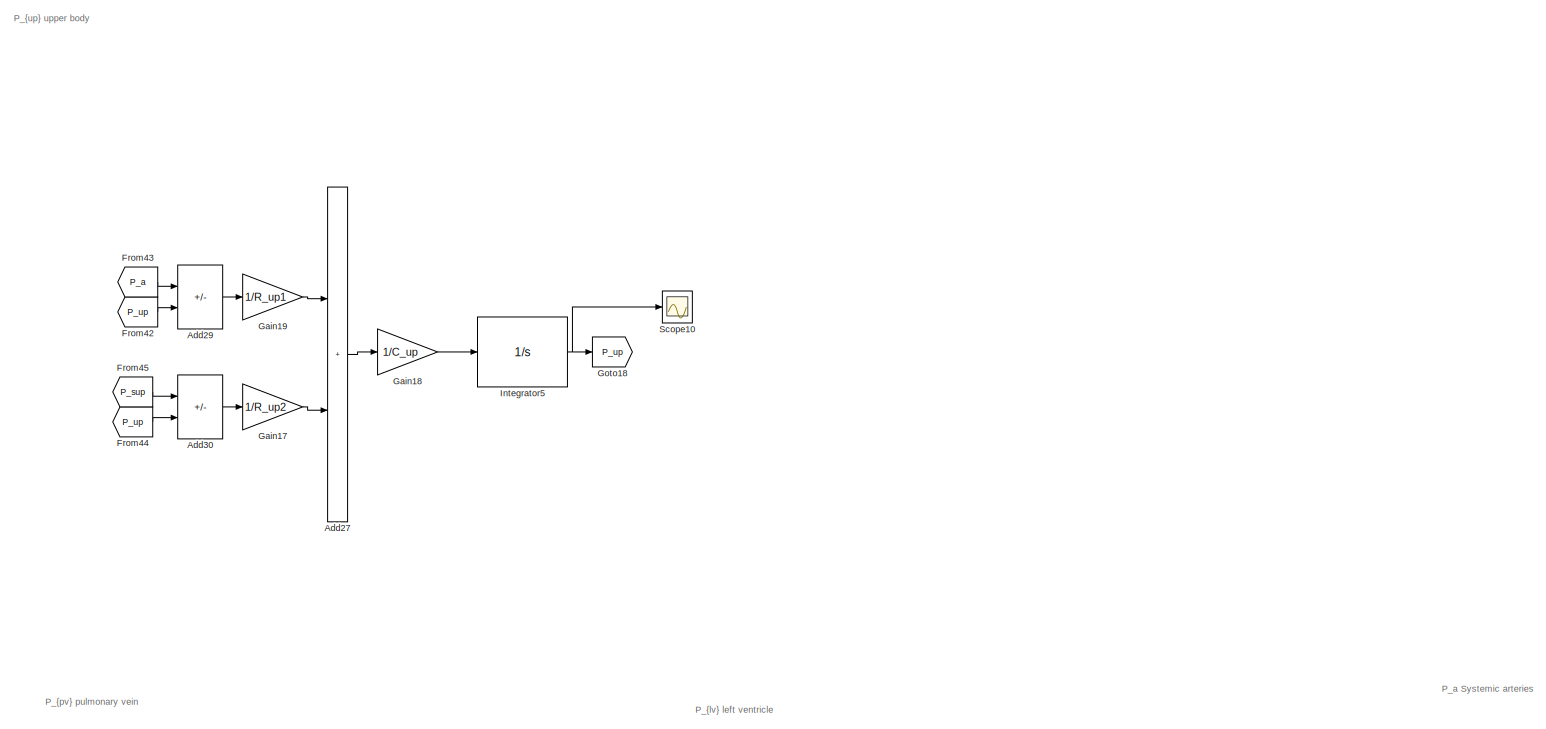
[diagram: root canvas - part 1/10, top right region]
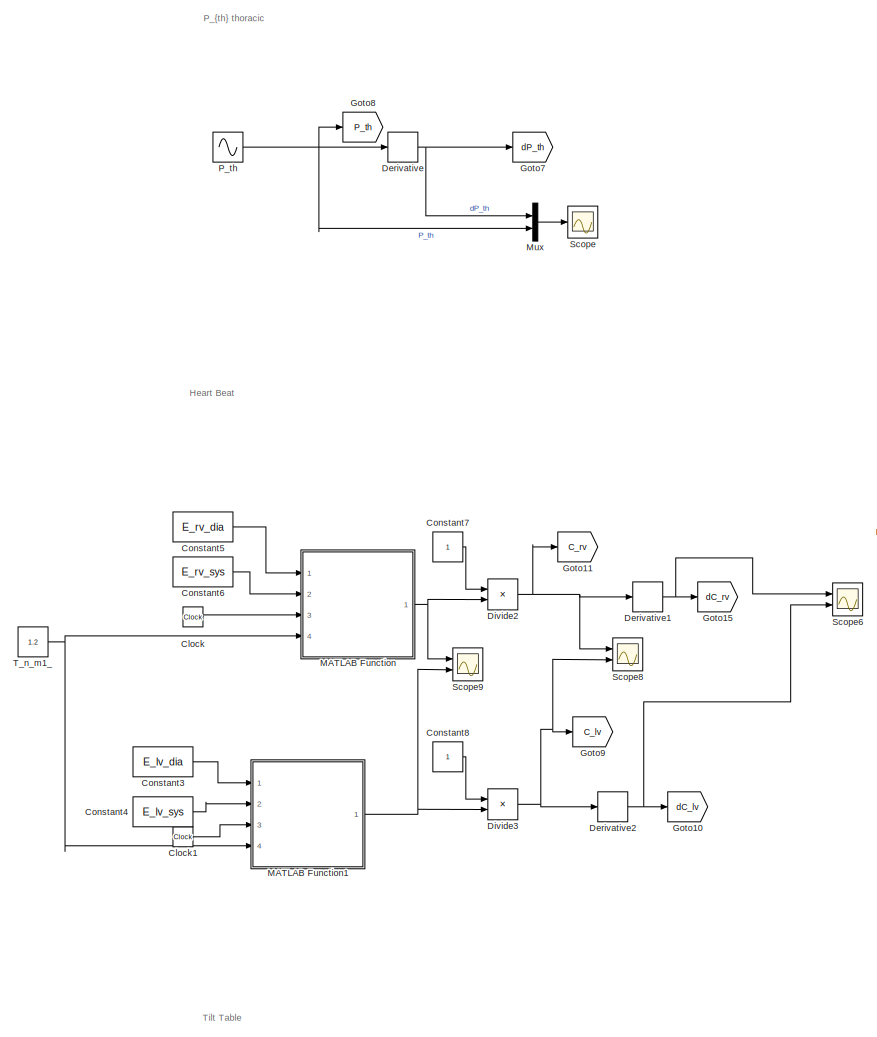
[diagram: root canvas - part 2/10, top left region]
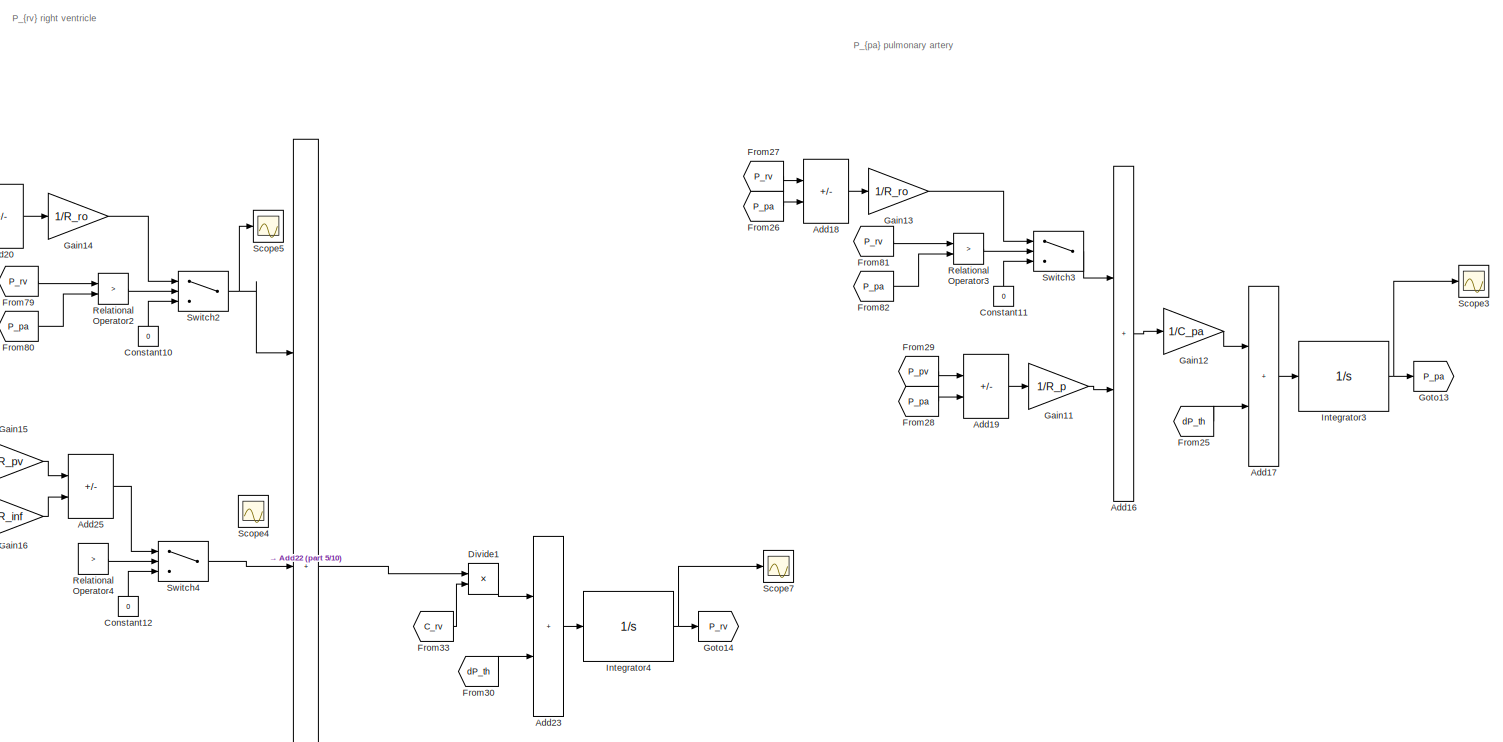
[diagram: root canvas - part 3/10, top center region]
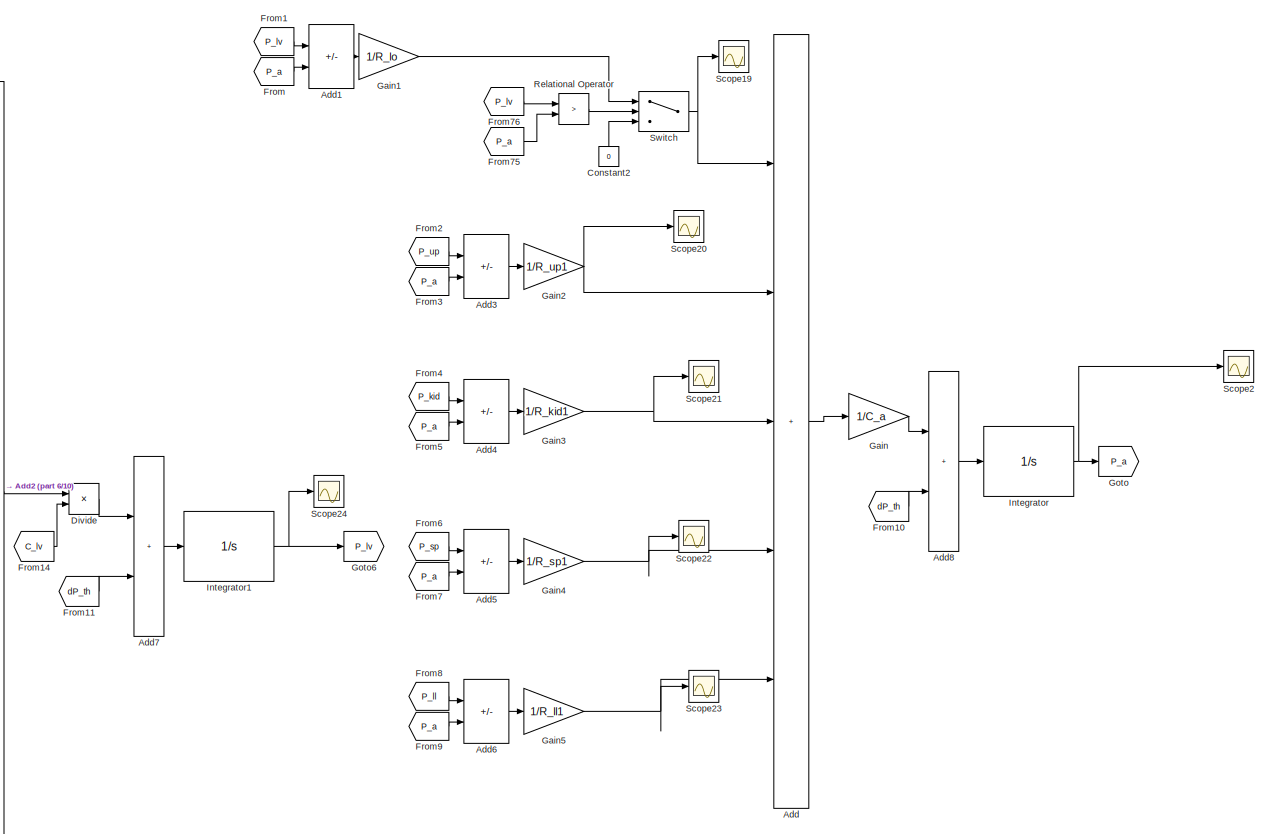
[diagram: root canvas - part 4/10, top right region]
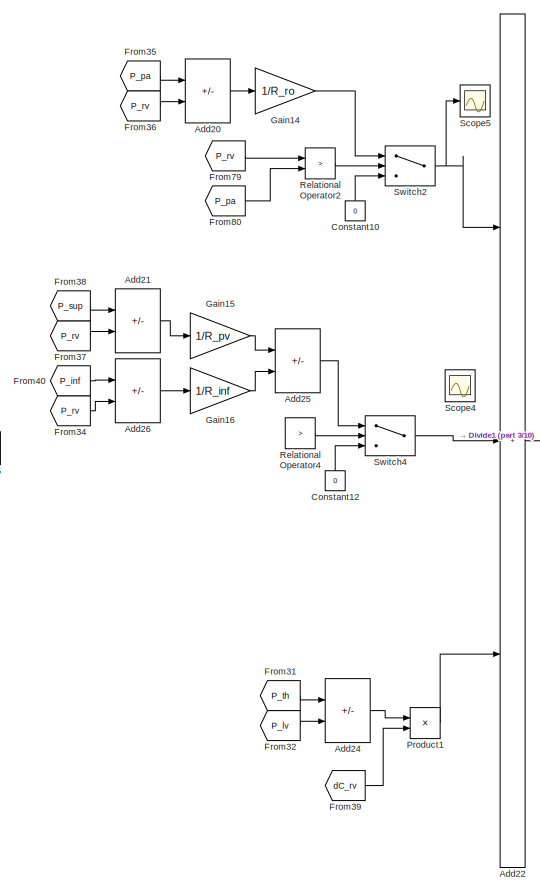
[diagram: root canvas - part 5/10, top left region]
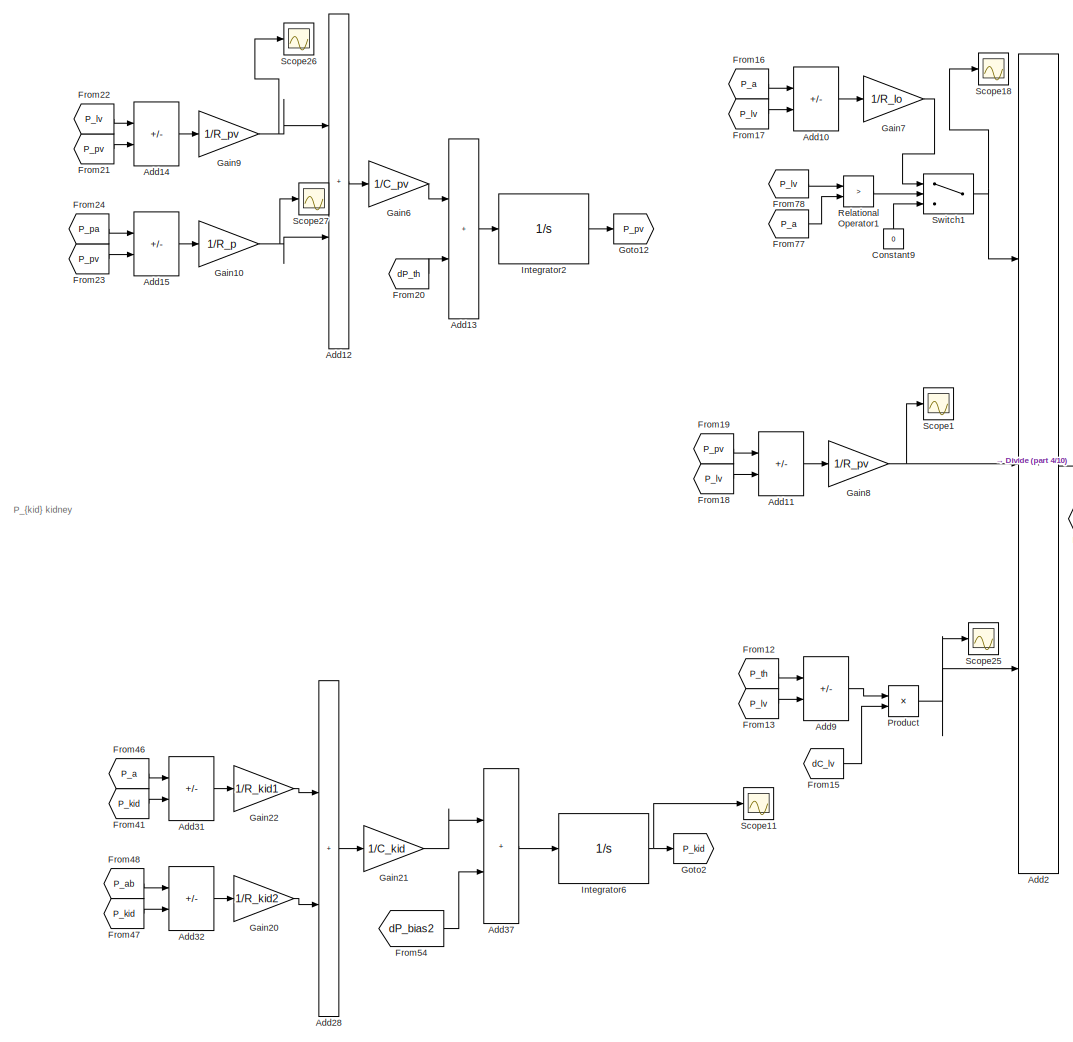
[diagram: root canvas - part 6/10, top center region]
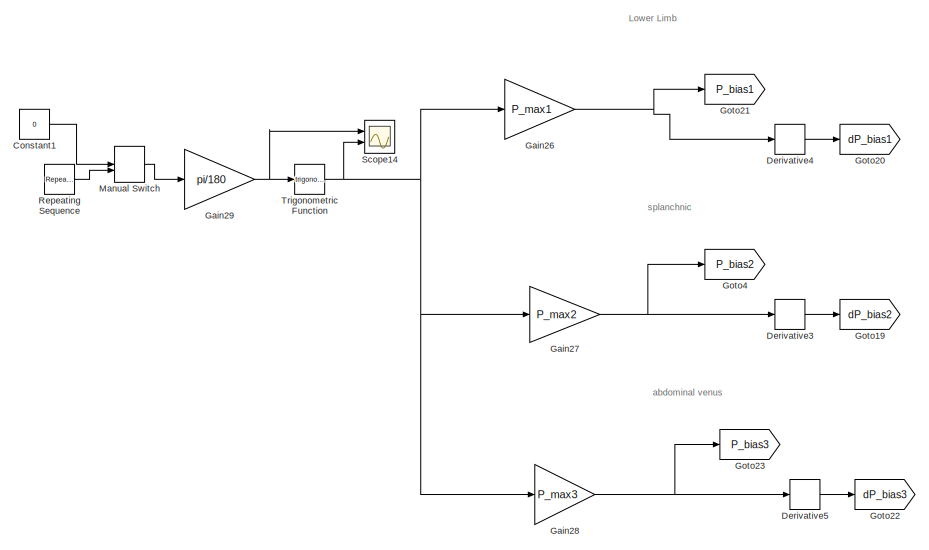
[diagram: root canvas - part 7/10, middle left region]
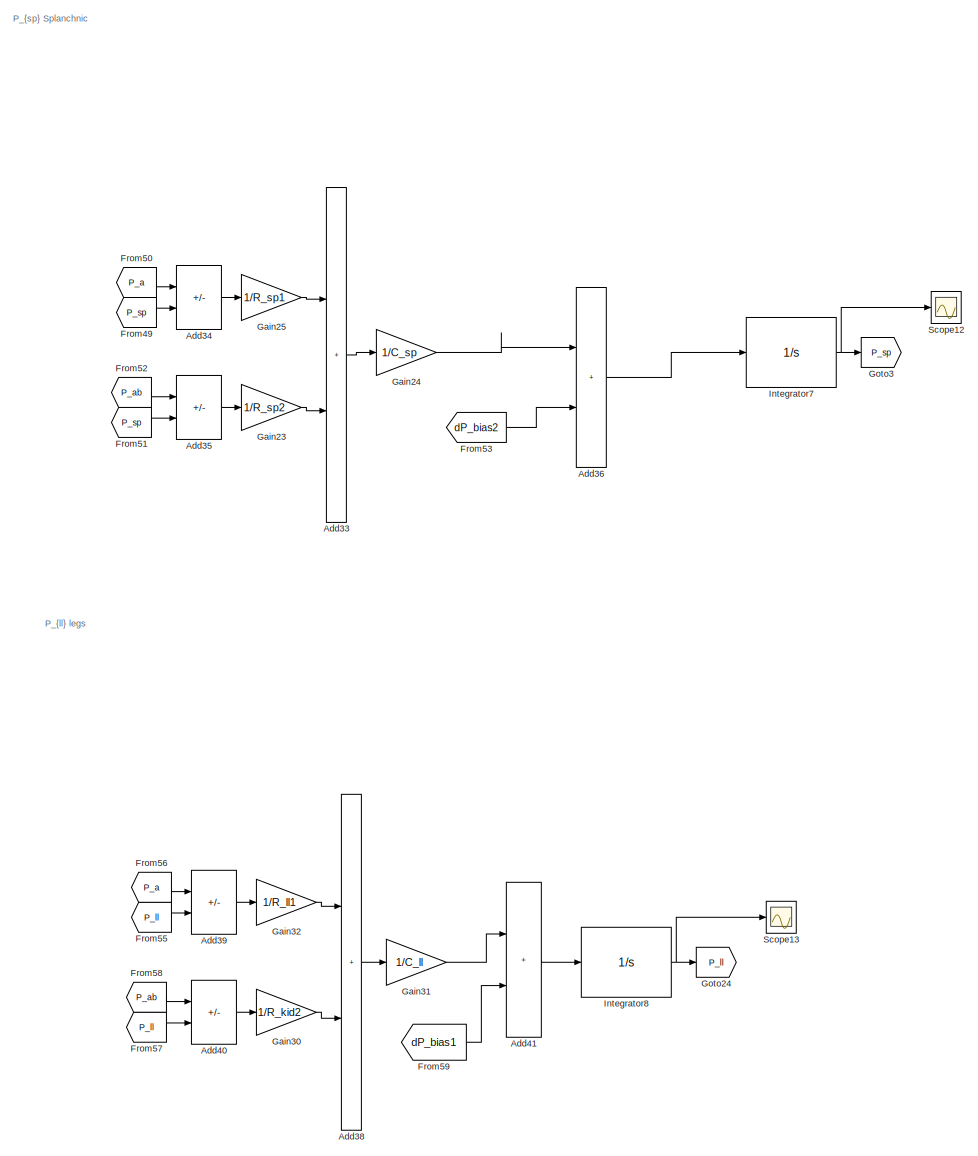
[diagram: root canvas - part 8/10, central region]
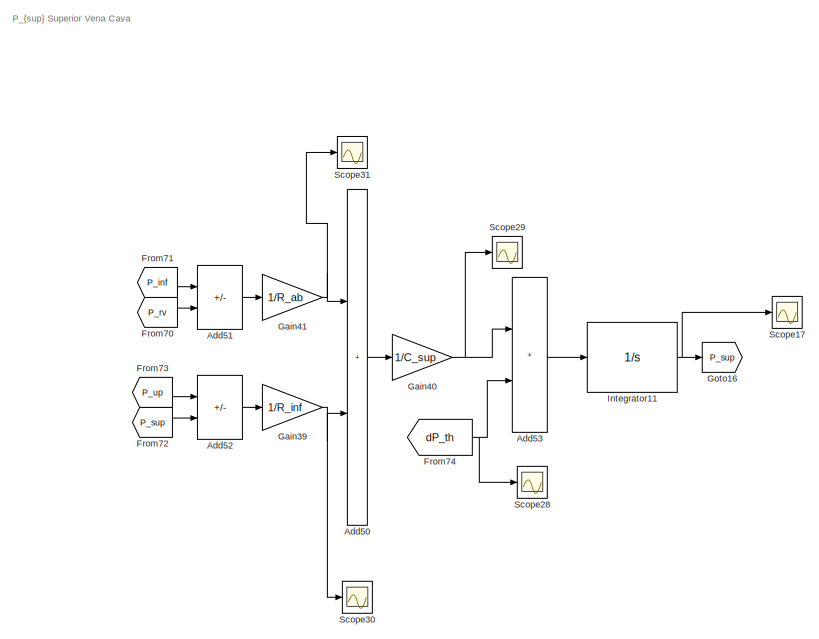
[diagram: root canvas - part 9/10, bottom center region]
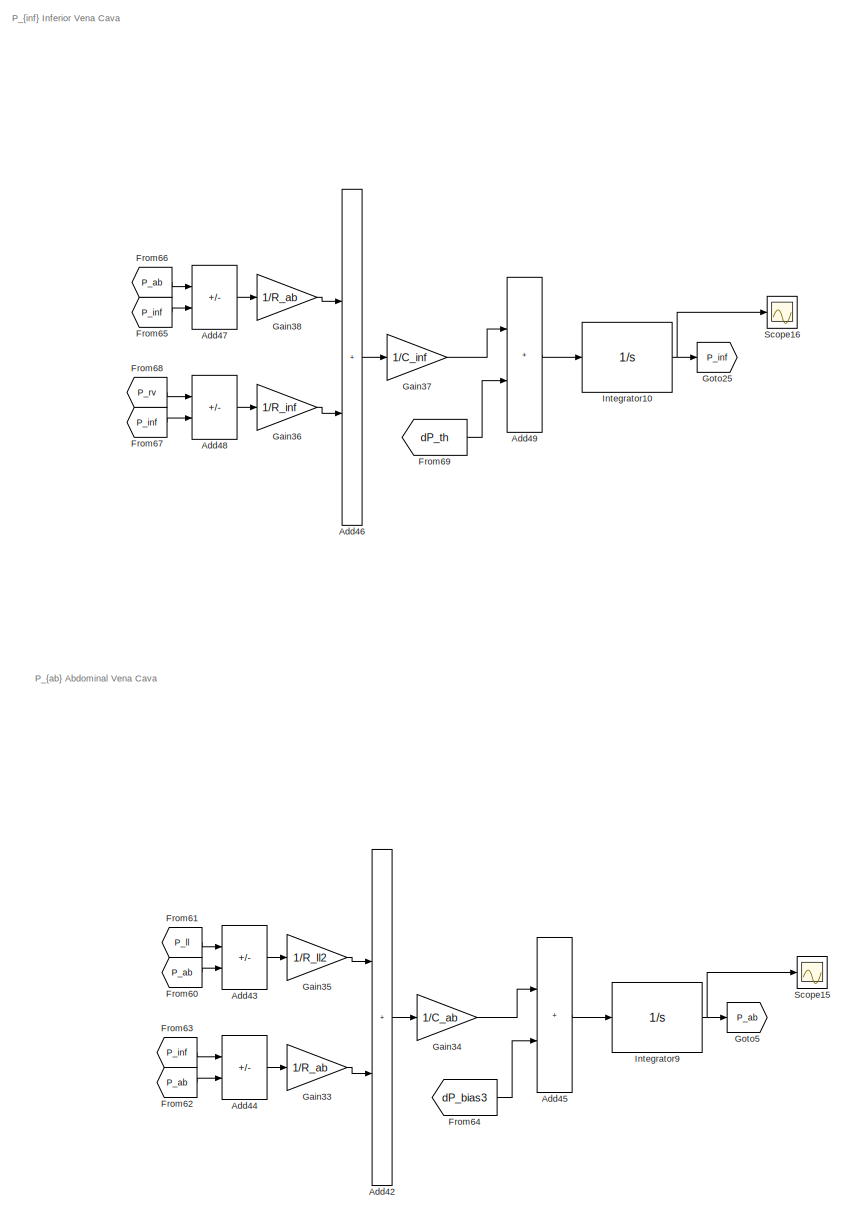
[diagram: root canvas - part 10/10, bottom center region]
MODEL slx_9fd78a174da4
KIND model
CONFIG AbsTol = auto
CONFIG EnableMultiTasking = off
CONFIG FixedStep = auto
CONFIG InitFcn = HeldtModel2002startup
CONFIG MaxStep = stepsize_max
CONFIG MinStep = stepsize_min 
CONFIG RelTol = 1e-3
CONFIG SampleTimeConstraint = Unconstrained
CONFIG SolverName = ode45
CONFIG StartTime = 0.0
CONFIG StopTime = 1000
BLOCK [Sum] Add
  IconShape = rectangular
  Inputs = +++++
  Ports = [5, 1]
BLOCK [Sum] Add1
  IconShape = rectangular
  Inputs = +-
  Ports = [2, 1]
BLOCK [Sum] Add10
  IconShape = rectangular
  Inputs = +-
  Ports = [2, 1]
BLOCK [Sum] Add11
  IconShape = rectangular
  Inputs = +-
  Ports = [2, 1]
BLOCK [Sum] Add12
  IconShape = rectangular
  Ports = [2, 1]
BLOCK [Sum] Add13
  IconShape = rectangular
  Ports = [2, 1]
BLOCK [Sum] Add14
  IconShape = rectangular
  Inputs = +-
  Ports = [2, 1]
BLOCK [Sum] Add15
  IconShape = rectangular
  Inputs = +-
  Ports = [2, 1]
BLOCK [Sum] Add16
  IconShape = rectangular
  Ports = [2, 1]
BLOCK [Sum] Add17
  IconShape = rectangular
  Ports = [2, 1]
BLOCK [Sum] Add18
  IconShape = rectangular
  Inputs = +-
  Ports = [2, 1]
BLOCK [Sum] Add19
  IconShape = rectangular
  Inputs = +-
  Ports = [2, 1]
BLOCK [Sum] Add2
  IconShape = rectangular
  Inputs = +++
  Ports = [3, 1]
BLOCK [Sum] Add20
  IconShape = rectangular
  Inputs = +-
  Ports = [2, 1]
BLOCK [Sum] Add21
  IconShape = rectangular
  Inputs = +-
  Ports = [2, 1]
BLOCK [Sum] Add22
  IconShape = rectangular
  Inputs = +++
  Ports = [3, 1]
BLOCK [Sum] Add23
  IconShape = rectangular
  Ports = [2, 1]
BLOCK [Sum] Add24
  IconShape = rectangular
  Inputs = +-
  Ports = [2, 1]
BLOCK [Sum] Add25
  IconShape = rectangular
  Inputs = +-
  Ports = [2, 1]
BLOCK [Sum] Add26
  IconShape = rectangular
  Inputs = +-
  Ports = [2, 1]
BLOCK [Sum] Add27
  IconShape = rectangular
  Ports = [2, 1]
BLOCK [Sum] Add28
  IconShape = rectangular
  Ports = [2, 1]
BLOCK [Sum] Add29
  IconShape = rectangular
  Inputs = +-
  Ports = [2, 1]
BLOCK [Sum] Add3
  IconShape = rectangular
  Inputs = +-
  Ports = [2, 1]
BLOCK [Sum] Add30
  IconShape = rectangular
  Inputs = +-
  Ports = [2, 1]
BLOCK [Sum] Add31
  IconShape = rectangular
  Inputs = +-
  Ports = [2, 1]
BLOCK [Sum] Add32
  IconShape = rectangular
  Inputs = +-
  Ports = [2, 1]
BLOCK [Sum] Add33
  IconShape = rectangular
  Ports = [2, 1]
BLOCK [Sum] Add34
  IconShape = rectangular
  Inputs = +-
  Ports = [2, 1]
BLOCK [Sum] Add35
  IconShape = rectangular
  Inputs = +-
  Ports = [2, 1]
BLOCK [Sum] Add36
  IconShape = rectangular
  Ports = [2, 1]
BLOCK [Sum] Add37
  IconShape = rectangular
  Ports = [2, 1]
BLOCK [Sum] Add38
  IconShape = rectangular
  Ports = [2, 1]
BLOCK [Sum] Add39
  IconShape = rectangular
  Inputs = +-
  Ports = [2, 1]
BLOCK [Sum] Add4
  IconShape = rectangular
  Inputs = +-
  Ports = [2, 1]
BLOCK [Sum] Add40
  IconShape = rectangular
  Inputs = +-
  Ports = [2, 1]
BLOCK [Sum] Add41
  IconShape = rectangular
  Ports = [2, 1]
BLOCK [Sum] Add42
  IconShape = rectangular
  Ports = [2, 1]
BLOCK [Sum] Add43
  IconShape = rectangular
  Inputs = +-
  Ports = [2, 1]
BLOCK [Sum] Add44
  IconShape = rectangular
  Inputs = +-
  Ports = [2, 1]
BLOCK [Sum] Add45
  IconShape = rectangular
  Ports = [2, 1]
BLOCK [Sum] Add46
  IconShape = rectangular
  Ports = [2, 1]
BLOCK [Sum] Add47
  IconShape = rectangular
  Inputs = +-
  Ports = [2, 1]
BLOCK [Sum] Add48
  IconShape = rectangular
  Inputs = +-
  Ports = [2, 1]
BLOCK [Sum] Add49
  IconShape = rectangular
  Ports = [2, 1]
BLOCK [Sum] Add5
  IconShape = rectangular
  Inputs = +-
  Ports = [2, 1]
BLOCK [Sum] Add50
  IconShape = rectangular
  Ports = [2, 1]
BLOCK [Sum] Add51
  IconShape = rectangular
  Inputs = +-
  Ports = [2, 1]
BLOCK [Sum] Add52
  IconShape = rectangular
  Inputs = +-
  Ports = [2, 1]
BLOCK [Sum] Add53
  IconShape = rectangular
  Ports = [2, 1]
BLOCK [Sum] Add6
  IconShape = rectangular
  Inputs = +-
  Ports = [2, 1]
BLOCK [Sum] Add7
  IconShape = rectangular
  Ports = [2, 1]
BLOCK [Sum] Add8
  IconShape = rectangular
  Ports = [2, 1]
BLOCK [Sum] Add9
  IconShape = rectangular
  Inputs = +-
  Ports = [2, 1]
BLOCK [Clock] Clock
BLOCK [Clock] Clock1
BLOCK [Constant] Constant1
  Value = 0
BLOCK [Constant] Constant10
  NameLocation = left
  Value = 0
BLOCK [Constant] Constant11
  NameLocation = left
  Value = 0
BLOCK [Constant] Constant12
  NameLocation = left
  Value = 0
BLOCK [Constant] Constant2
  NameLocation = left
  Value = 0
BLOCK [Constant] Constant3
  Value = E_lv_dia
BLOCK [Constant] Constant4
  Value = E_lv_sys
BLOCK [Constant] Constant5
  Value = E_rv_dia
BLOCK [Constant] Constant6
  Value = E_rv_sys
BLOCK [Constant] Constant7
BLOCK [Constant] Constant8
BLOCK [Constant] Constant9
  NameLocation = left
  Value = 0
BLOCK [Derivative] Derivative
BLOCK [Derivative] Derivative1
BLOCK [Derivative] Derivative2
BLOCK [Derivative] Derivative3
BLOCK [Derivative] Derivative4
BLOCK [Derivative] Derivative5
BLOCK [Product] Divide
  Inputs = */
  Ports = [2, 1]
BLOCK [Product] Divide1
  Inputs = */
  Ports = [2, 1]
BLOCK [Product] Divide2
  Inputs = */
  Ports = [2, 1]
BLOCK [Product] Divide3
  Inputs = */
  Ports = [2, 1]
BLOCK [From] From
  GotoTag = P_a
BLOCK [From] From1
  GotoTag = P_lv
BLOCK [From] From10
  GotoTag = dP_th
BLOCK [From] From11
  GotoTag = dP_th
BLOCK [From] From12
  GotoTag = P_th
BLOCK [From] From13
  GotoTag = P_lv
BLOCK [From] From14
  GotoTag = C_lv
BLOCK [From] From15
  GotoTag = dC_lv
BLOCK [From] From16
  GotoTag = P_a
BLOCK [From] From17
  GotoTag = P_lv
BLOCK [From] From18
  GotoTag = P_lv
BLOCK [From] From19
  GotoTag = P_pv
BLOCK [From] From2
  GotoTag = P_up
BLOCK [From] From20
  GotoTag = dP_th
BLOCK [From] From21
  GotoTag = P_pv
BLOCK [From] From22
  GotoTag = P_lv
BLOCK [From] From23
  GotoTag = P_pv
BLOCK [From] From24
  GotoTag = P_pa
BLOCK [From] From25
  GotoTag = dP_th
BLOCK [From] From26
  GotoTag = P_pa
BLOCK [From] From27
  GotoTag = P_rv
BLOCK [From] From28
  GotoTag = P_pa
BLOCK [From] From29
  GotoTag = P_pv
BLOCK [From] From3
  GotoTag = P_a
BLOCK [From] From30
  GotoTag = dP_th
BLOCK [From] From31
  GotoTag = P_th
BLOCK [From] From32
  GotoTag = P_lv
BLOCK [From] From33
  GotoTag = C_rv
BLOCK [From] From34
  GotoTag = P_rv
BLOCK [From] From35
  GotoTag = P_pa
BLOCK [From] From36
  GotoTag = P_rv
BLOCK [From] From37
  GotoTag = P_rv
BLOCK [From] From38
  GotoTag = P_sup
BLOCK [From] From39
  GotoTag = dC_rv
BLOCK [From] From4
  GotoTag = P_kid
BLOCK [From] From40
  GotoTag = P_inf
BLOCK [From] From41
  GotoTag = P_kid
BLOCK [From] From42
  GotoTag = P_up
BLOCK [From] From43
  GotoTag = P_a
BLOCK [From] From44
  GotoTag = P_up
BLOCK [From] From45
  GotoTag = P_sup
BLOCK [From] From46
  GotoTag = P_a
BLOCK [From] From47
  GotoTag = P_kid
BLOCK [From] From48
  GotoTag = P_ab
BLOCK [From] From49
  GotoTag = P_sp
BLOCK [From] From5
  GotoTag = P_a
BLOCK [From] From50
  GotoTag = P_a
BLOCK [From] From51
  GotoTag = P_sp
BLOCK [From] From52
  GotoTag = P_ab
BLOCK [From] From53
  GotoTag = dP_bias2
BLOCK [From] From54
  GotoTag = dP_bias2
BLOCK [From] From55
  GotoTag = P_ll
BLOCK [From] From56
  GotoTag = P_a
BLOCK [From] From57
  GotoTag = P_ll
BLOCK [From] From58
  GotoTag = P_ab
BLOCK [From] From59
  GotoTag = dP_bias1
BLOCK [From] From6
  GotoTag = P_sp
BLOCK [From] From60
  GotoTag = P_ab
BLOCK [From] From61
  GotoTag = P_ll
BLOCK [From] From62
  GotoTag = P_ab
BLOCK [From] From63
  GotoTag = P_inf
BLOCK [From] From64
  GotoTag = dP_bias3
BLOCK [From] From65
  GotoTag = P_inf
BLOCK [From] From66
  GotoTag = P_ab
BLOCK [From] From67
  GotoTag = P_inf
BLOCK [From] From68
  GotoTag = P_rv
BLOCK [From] From69
  GotoTag = dP_th
BLOCK [From] From7
  GotoTag = P_a
BLOCK [From] From70
  GotoTag = P_rv
BLOCK [From] From71
  GotoTag = P_inf
BLOCK [From] From72
  GotoTag = P_sup
BLOCK [From] From73
  GotoTag = P_up
BLOCK [From] From74
  GotoTag = dP_th
BLOCK [From] From75
  GotoTag = P_a
BLOCK [From] From76
  GotoTag = P_lv
BLOCK [From] From77
  GotoTag = P_a
BLOCK [From] From78
  GotoTag = P_lv
BLOCK [From] From79
  GotoTag = P_rv
BLOCK [From] From8
  GotoTag = P_ll
BLOCK [From] From80
  GotoTag = P_pa
BLOCK [From] From81
  GotoTag = P_rv
BLOCK [From] From82
  GotoTag = P_pa
BLOCK [From] From9
  GotoTag = P_a
BLOCK [Gain] Gain
  Gain = 1/C_a
BLOCK [Gain] Gain1
  Gain = 1/R_lo
BLOCK [Gain] Gain10
  Gain = 1/R_p
BLOCK [Gain] Gain11
  Gain = 1/R_p
BLOCK [Gain] Gain12
  Gain = 1/C_pa
BLOCK [Gain] Gain13
  Gain = 1/R_ro
BLOCK [Gain] Gain14
  Gain = 1/R_ro
BLOCK [Gain] Gain15
  Gain = 1/R_pv
BLOCK [Gain] Gain16
  Gain = 1/R_inf
BLOCK [Gain] Gain17
  Gain = 1/R_up2
BLOCK [Gain] Gain18
  Gain = 1/C_up
BLOCK [Gain] Gain19
  Gain = 1/R_up1
BLOCK [Gain] Gain2
  Gain = 1/R_up1
BLOCK [Gain] Gain20
  Gain = 1/R_kid2
BLOCK [Gain] Gain21
  Gain = 1/C_kid
BLOCK [Gain] Gain22
  Gain = 1/R_kid1
BLOCK [Gain] Gain23
  Gain = 1/R_sp2
BLOCK [Gain] Gain24
  Gain = 1/C_sp
BLOCK [Gain] Gain25
  Gain = 1/R_sp1
BLOCK [Gain] Gain26
  Gain = P_max1
BLOCK [Gain] Gain27
  Gain = P_max2
BLOCK [Gain] Gain28
  Gain = P_max3
BLOCK [Gain] Gain29
  Gain = pi/180
BLOCK [Gain] Gain3
  Gain = 1/R_kid1
BLOCK [Gain] Gain30
  Gain = 1/R_kid2
BLOCK [Gain] Gain31
  Gain = 1/C_ll
BLOCK [Gain] Gain32
  Gain = 1/R_ll1
BLOCK [Gain] Gain33
  Gain = 1/R_ab
BLOCK [Gain] Gain34
  Gain = 1/C_ab
BLOCK [Gain] Gain35
  Gain = 1/R_ll2
BLOCK [Gain] Gain36
  Gain = 1/R_inf
BLOCK [Gain] Gain37
  Gain = 1/C_inf
BLOCK [Gain] Gain38
  Gain = 1/R_ab
BLOCK [Gain] Gain39
  Gain = 1/R_inf
BLOCK [Gain] Gain4
  Gain = 1/R_sp1
BLOCK [Gain] Gain40
  Gain = 1/C_sup
BLOCK [Gain] Gain41
  Gain = 1/R_ab
BLOCK [Gain] Gain5
  Gain = 1/R_ll1
BLOCK [Gain] Gain6
  Gain = 1/C_pv
BLOCK [Gain] Gain7
  Gain = 1/R_lo
BLOCK [Gain] Gain8
  Gain = 1/R_pv
BLOCK [Gain] Gain9
  Gain = 1/R_pv
BLOCK [Goto] Goto
  GotoTag = P_a
BLOCK [Goto] Goto10
  GotoTag = dC_lv
BLOCK [Goto] Goto11
  GotoTag = C_rv
BLOCK [Goto] Goto12
  GotoTag = P_pv
BLOCK [Goto] Goto13
  GotoTag = P_pa
BLOCK [Goto] Goto14
  GotoTag = P_rv
BLOCK [Goto] Goto15
  GotoTag = dC_rv
BLOCK [Goto] Goto16
  GotoTag = P_sup
BLOCK [Goto] Goto18
  GotoTag = P_up
BLOCK [Goto] Goto19
  GotoTag = dP_bias2
BLOCK [Goto] Goto2
  GotoTag = P_kid
BLOCK [Goto] Goto20
  GotoTag = dP_bias1
BLOCK [Goto] Goto21
  GotoTag = P_bias1
BLOCK [Goto] Goto22
  GotoTag = dP_bias3
BLOCK [Goto] Goto23
  GotoTag = P_bias3
BLOCK [Goto] Goto24
  GotoTag = P_ll
BLOCK [Goto] Goto25
  GotoTag = P_inf
BLOCK [Goto] Goto3
  GotoTag = P_sp
BLOCK [Goto] Goto4
  GotoTag = P_bias2
BLOCK [Goto] Goto5
  GotoTag = P_ab
BLOCK [Goto] Goto6
  GotoTag = P_lv
BLOCK [Goto] Goto7
  GotoTag = dP_th
BLOCK [Goto] Goto8
  GotoTag = P_th
BLOCK [Goto] Goto9
  GotoTag = C_lv
BLOCK [Integrator] Integrator
  InitialCondition = P_a_init
  Ports = [1, 1]
BLOCK [Integrator] Integrator1
  InitialCondition = P_lv_init
  Ports = [1, 1]
BLOCK [Integrator] Integrator10
  InitialCondition = P_inf_init
  Ports = [1, 1]
BLOCK [Integrator] Integrator11
  InitialCondition = P_sup_init
  Ports = [1, 1]
BLOCK [Integrator] Integrator2
  InitialCondition = P_pv_init
  Ports = [1, 1]
BLOCK [Integrator] Integrator3
  InitialCondition = P_pa_init
  Ports = [1, 1]
BLOCK [Integrator] Integrator4
  InitialCondition = P_rv_init
  Ports = [1, 1]
BLOCK [Integrator] Integrator5
  InitialCondition = P_up_init
  Ports = [1, 1]
BLOCK [Integrator] Integrator6
  InitialCondition = P_kid_init
  Ports = [1, 1]
BLOCK [Integrator] Integrator7
  InitialCondition = P_sp_init
  Ports = [1, 1]
BLOCK [Integrator] Integrator8
  InitialCondition = P_ll_init
  Ports = [1, 1]
BLOCK [Integrator] Integrator9
  InitialCondition = P_ab_init
  Ports = [1, 1]
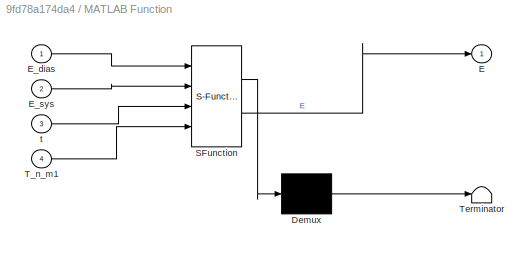
BLOCK [SubSystem] MATLAB Function
  ErrorFcn = Stateflow.Translate.translate
  PermitHierarchicalResolution = ExplicitOnly
  Ports = [4, 1]
  RequestExecContextInheritance = off
  SFBlockType = MATLAB Function
  TreatAsAtomicUnit = on
BLOCK [Demux] MATLAB Function/ Demux 
  Outputs = 1
  Ports = [1, 1]
BLOCK [S-Function] MATLAB Function/ SFunction 
  EnableBusSupport = on
  FunctionName = sf_sfun
  PortCounts = [4 2]
  Ports = [4, 2]
  SFcnIsStateOwnerBlock = off
  SFunctionDeploymentMode = off
  Tag = Stateflow S-Function 2
BLOCK [Terminator] MATLAB Function/ Terminator 
BLOCK [Outport] MATLAB Function/E
BLOCK [Inport] MATLAB Function/E_dias
BLOCK [Inport] MATLAB Function/E_sys
  Port = 2
BLOCK [Inport] MATLAB Function/T_n_m1
  Port = 4
BLOCK [Inport] MATLAB Function/t
  Port = 3
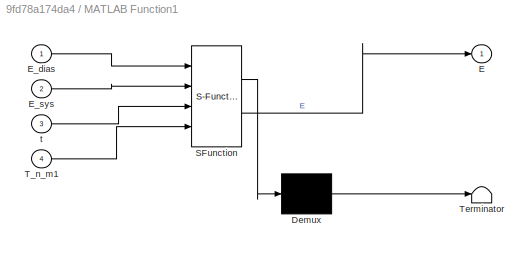
BLOCK [SubSystem] MATLAB Function1
  ErrorFcn = Stateflow.Translate.translate
  PermitHierarchicalResolution = ExplicitOnly
  Ports = [4, 1]
  RequestExecContextInheritance = off
  SFBlockType = MATLAB Function
  TreatAsAtomicUnit = on
BLOCK [Demux] MATLAB Function1/ Demux 
  Outputs = 1
  Ports = [1, 1]
BLOCK [S-Function] MATLAB Function1/ SFunction 
  EnableBusSupport = on
  FunctionName = sf_sfun
  PortCounts = [4 2]
  Ports = [4, 2]
  SFcnIsStateOwnerBlock = off
  SFunctionDeploymentMode = off
  Tag = Stateflow S-Function 1
BLOCK [Terminator] MATLAB Function1/ Terminator 
BLOCK [Outport] MATLAB Function1/E
BLOCK [Inport] MATLAB Function1/E_dias
BLOCK [Inport] MATLAB Function1/E_sys
  Port = 2
BLOCK [Inport] MATLAB Function1/T_n_m1
  Port = 4
BLOCK [Inport] MATLAB Function1/t
  Port = 3
BLOCK [ManualSwitch] Manual Switch
  CurrentSetting = 0
BLOCK [Mux] Mux
  DisplayOption = bar
  Inputs = 2
  Ports = [2, 1]
BLOCK [Sin] P_th
  Bias = P_th_bias
  Frequency = freq
  Ports = [0, 1]
BLOCK [Product] Product
  Ports = [2, 1]
BLOCK [Product] Product1
  Ports = [2, 1]
BLOCK [RelationalOperator] Relational Operator
  InputSameDT = off
  Operator = >
  OutDataTypeStr = boolean
  Ports = [2, 1]
  RndMeth = Simplest
BLOCK [RelationalOperator] Relational Operator1
  InputSameDT = off
  Operator = >
  OutDataTypeStr = boolean
  Ports = [2, 1]
  RndMeth = Simplest
BLOCK [RelationalOperator] Relational Operator2
  InputSameDT = off
  Operator = >
  OutDataTypeStr = boolean
  Ports = [2, 1]
  RndMeth = Simplest
BLOCK [RelationalOperator] Relational Operator3
  InputSameDT = off
  Operator = >
  OutDataTypeStr = boolean
  Ports = [2, 1]
  RndMeth = Simplest
BLOCK [RelationalOperator] Relational Operator4
  InputSameDT = off
  Operator = >
  OutDataTypeStr = boolean
  Ports = [2, 1]
  RndMeth = Simplest
BLOCK [Reference] Repeating Sequence  REF=simulink/Sources/Repeating
Sequence
  Ports = [0, 1]
  SourceBlock = simulink/Sources/Repeating\nSequence
  SourceProductBaseCode = SL
  SourceType = Repeating table
BLOCK [Scope] Scope
  Floating = off
  NumInputPorts = 1
  Ports = [1]
  ScopeSpecificationString = Simulink.scopes.TimeScopeBlockCfg('CurrentConfiguration', extmgr.ConfigurationSet(extmgr.Configuration('Core','General UI',true),extmgr.Configuration('Core','Source UI',true),extmgr.Configuration('Sources','WiredSimulink',true),extmgr.Configuration('Visuals','Time Domain',true,'SerializedDisplays',{struct('MinYLimReal','-6.91016','MaxYLimReal','2.19141','YLabelReal','','MinYLimMag','0.00000','MaxY...<+1385ch>
BLOCK [Scope] Scope1
  Floating = off
  NumInputPorts = 1
  Ports = [1]
  ScopeSpecificationString = Simulink.scopes.TimeScopeBlockCfg('CurrentConfiguration', extmgr.ConfigurationSet(extmgr.Configuration('Core','General UI',true),extmgr.Configuration('Core','Source UI',true),extmgr.Configuration('Sources','WiredSimulink',true,'DataLoggingVariableName','ScopeData1'),extmgr.Configuration('Visuals','Time Domain',true,'SerializedDisplays',{struct('MinYLimReal','-15002979004380827978396946012502048218...<+1791ch>
BLOCK [Scope] Scope10
  Floating = off
  NumInputPorts = 1
  Ports = [1]
  ScopeSpecificationString = Simulink.scopes.TimeScopeBlockCfg('CurrentConfiguration', extmgr.ConfigurationSet(extmgr.Configuration('Core','General UI',true),extmgr.Configuration('Core','Source UI',true),extmgr.Configuration('Sources','WiredSimulink',true,'DataLoggingVariableName','ScopeData5'),extmgr.Configuration('Visuals','Time Domain',true,'SerializedDisplays',{struct('MinYLimReal','-54469838872309051201295142729989893356...<+1743ch>
BLOCK [Scope] Scope11
  Floating = off
  NumInputPorts = 1
  Ports = [1]
  ScopeSpecificationString = Simulink.scopes.TimeScopeBlockCfg('CurrentConfiguration', extmgr.ConfigurationSet(extmgr.Configuration('Core','General UI',true),extmgr.Configuration('Core','Source UI',true),extmgr.Configuration('Sources','WiredSimulink',true,'DataLoggingVariableName','ScopeData6'),extmgr.Configuration('Visuals','Time Domain',true,'SerializedDisplays',{struct('MinYLimReal','31.46331','MaxYLimReal','82.05963','YLa...<+1403ch>
BLOCK [Scope] Scope12
  Floating = off
  NumInputPorts = 1
  Ports = [1]
  ScopeSpecificationString = Simulink.scopes.TimeScopeBlockCfg('CurrentConfiguration', extmgr.ConfigurationSet(extmgr.Configuration('Core','General UI',true),extmgr.Configuration('Core','Source UI',true),extmgr.Configuration('Sources','WiredSimulink',true,'DataLoggingVariableName','ScopeData7'),extmgr.Configuration('Visuals','Time Domain',true,'SerializedDisplays',{struct('MinYLimReal','-0.00046','MaxYLimReal','0.00044','YLab...<+1397ch>
BLOCK [Scope] Scope13
  Floating = off
  NumInputPorts = 1
  Ports = [1]
  ScopeSpecificationString = Simulink.scopes.TimeScopeBlockCfg('CurrentConfiguration', extmgr.ConfigurationSet(extmgr.Configuration('Core','General UI',true),extmgr.Configuration('Core','Source UI',true),extmgr.Configuration('Sources','WiredSimulink',true,'DataLoggingVariableName','ScopeData8'),extmgr.Configuration('Visuals','Time Domain',true,'SerializedDisplays',{struct('MinYLimReal','27.84888','MaxYLimReal','82.46124','YLa...<+1403ch>
BLOCK [Scope] Scope14
  Floating = off
  NumInputPorts = 2
  Ports = [2]
  ScopeSpecificationString = Simulink.scopes.TimeScopeBlockCfg('CurrentConfiguration', extmgr.ConfigurationSet(extmgr.Configuration('Core','General UI',true),extmgr.Configuration('Core','Source UI',true),extmgr.Configuration('Sources','WiredSimulink',true,'DataLoggingVariableName','ScopeData9'),extmgr.Configuration('Visuals','Time Domain',true,'SerializedDisplays',{struct('MinYLimReal','-0.2057','MaxYLimReal','0.62885','YLabe...<+1531ch>
BLOCK [Scope] Scope15
  Floating = off
  NumInputPorts = 1
  Ports = [1]
  ScopeSpecificationString = Simulink.scopes.TimeScopeBlockCfg('CurrentConfiguration', extmgr.ConfigurationSet(extmgr.Configuration('Core','General UI',true),extmgr.Configuration('Core','Source UI',true),extmgr.Configuration('Sources','WiredSimulink',true,'DataLoggingVariableName','ScopeData10'),extmgr.Configuration('Visuals','Time Domain',true,'SerializedDisplays',{struct('MinYLimReal','5.01912','MaxYLimReal','44.82795','YLa...<+1400ch>
BLOCK [Scope] Scope16
  Floating = off
  NumInputPorts = 1
  Ports = [1]
  ScopeSpecificationString = Simulink.scopes.TimeScopeBlockCfg('CurrentConfiguration', extmgr.ConfigurationSet(extmgr.Configuration('Core','General UI',true),extmgr.Configuration('Core','Source UI',true),extmgr.Configuration('Sources','WiredSimulink',true,'DataLoggingVariableName','ScopeData11'),extmgr.Configuration('Visuals','Time Domain',true,'SerializedDisplays',{struct('MinYLimReal','5.00305','MaxYLimReal','44.97257','YLa...<+1401ch>
BLOCK [Scope] Scope17
  Floating = off
  NumInputPorts = 1
  Ports = [1]
  ScopeSpecificationString = Simulink.scopes.TimeScopeBlockCfg('CurrentConfiguration', extmgr.ConfigurationSet(extmgr.Configuration('Core','General UI',true),extmgr.Configuration('Core','Source UI',true),extmgr.Configuration('Sources','WiredSimulink',true,'DataLoggingVariableName','ScopeData12'),extmgr.Configuration('Visuals','Time Domain',true,'SerializedDisplays',{struct('MinYLimReal','-22.19641','MaxYLimReal','94.39123','Y...<+1405ch>
BLOCK [Scope] Scope18
  Floating = off
  NumInputPorts = 1
  Ports = [1]
  ScopeSpecificationString = Simulink.scopes.TimeScopeBlockCfg('CurrentConfiguration', extmgr.ConfigurationSet(extmgr.Configuration('Core','General UI',true),extmgr.Configuration('Core','Source UI',true),extmgr.Configuration('Sources','WiredSimulink',true,'DataLoggingVariableName','ScopeData1'),extmgr.Configuration('Visuals','Time Domain',true,'SerializedDisplays',{struct('MinYLimReal','-65288100541901255744613113220462021281...<+1818ch>
BLOCK [Scope] Scope19
  Floating = off
  NumInputPorts = 1
  Ports = [1]
  ScopeSpecificationString = Simulink.scopes.TimeScopeBlockCfg('CurrentConfiguration', extmgr.ConfigurationSet(extmgr.Configuration('Core','General UI',true),extmgr.Configuration('Core','Source UI',true),extmgr.Configuration('Sources','WiredSimulink',true,'DataLoggingVariableName','ScopeData1'),extmgr.Configuration('Visuals','Time Domain',true,'SerializedDisplays',{struct('MinYLimReal','-2581.69956','MaxYLimReal','28061.83981...<+1438ch>
BLOCK [Scope] Scope2
  Floating = off
  NumInputPorts = 1
  Ports = [1]
  ScopeSpecificationString = Simulink.scopes.TimeScopeBlockCfg('CurrentConfiguration', extmgr.ConfigurationSet(extmgr.Configuration('Core','General UI',true),extmgr.Configuration('Core','Source UI',true),extmgr.Configuration('Sources','WiredSimulink',true,'DataLoggingVariableName','ScopeData2'),extmgr.Configuration('Visuals','Time Domain',true,'SerializedDisplays',{struct('MinYLimReal','-3011.72283','MaxYLimReal','27678.80232...<+1467ch>
BLOCK [Scope] Scope20
  Floating = off
  NumInputPorts = 1
  Ports = [1]
  ScopeSpecificationString = Simulink.scopes.TimeScopeBlockCfg('CurrentConfiguration', extmgr.ConfigurationSet(extmgr.Configuration('Core','General UI',true),extmgr.Configuration('Core','Source UI',true),extmgr.Configuration('Sources','WiredSimulink',true,'DataLoggingVariableName','ScopeData2'),extmgr.Configuration('Visuals','Time Domain',true,'SerializedDisplays',{struct('MinYLimReal','-13.5226','MaxYLimReal','15.91844','YLa...<+1445ch>
BLOCK [Scope] Scope21
  Floating = off
  NumInputPorts = 1
  Ports = [1]
  ScopeSpecificationString = Simulink.scopes.TimeScopeBlockCfg('CurrentConfiguration', extmgr.ConfigurationSet(extmgr.Configuration('Core','General UI',true),extmgr.Configuration('Core','Source UI',true),extmgr.Configuration('Sources','WiredSimulink',true,'DataLoggingVariableName','ScopeData3'),extmgr.Configuration('Visuals','Time Domain',true,'SerializedDisplays',{struct('MinYLimReal','-15.90807','MaxYLimReal','18.66644','YL...<+1447ch>
BLOCK [Scope] Scope22
  Floating = off
  NumInputPorts = 1
  Ports = [1]
  ScopeSpecificationString = Simulink.scopes.TimeScopeBlockCfg('CurrentConfiguration', extmgr.ConfigurationSet(extmgr.Configuration('Core','General UI',true),extmgr.Configuration('Core','Source UI',true),extmgr.Configuration('Sources','WiredSimulink',true,'DataLoggingVariableName','ScopeData4'),extmgr.Configuration('Visuals','Time Domain',true,'SerializedDisplays',{struct('MinYLimReal','-21.92447','MaxYLimReal','26.97337','YL...<+1447ch>
BLOCK [Scope] Scope23
  Floating = off
  NumInputPorts = 1
  Ports = [1]
  ScopeSpecificationString = Simulink.scopes.TimeScopeBlockCfg('CurrentConfiguration', extmgr.ConfigurationSet(extmgr.Configuration('Core','General UI',true),extmgr.Configuration('Core','Source UI',true),extmgr.Configuration('Sources','WiredSimulink',true,'DataLoggingVariableName','ScopeData5'),extmgr.Configuration('Visuals','Time Domain',true,'SerializedDisplays',{struct('MinYLimReal','-18.16029','MaxYLimReal','21.70734','YL...<+1446ch>
BLOCK [Scope] Scope24
  Floating = off
  NumInputPorts = 1
  Ports = [1]
  ScopeSpecificationString = Simulink.scopes.TimeScopeBlockCfg('CurrentConfiguration', extmgr.ConfigurationSet(extmgr.Configuration('Core','General UI',true),extmgr.Configuration('Core','Source UI',true),extmgr.Configuration('Sources','WiredSimulink',true,'DataLoggingVariableName','ScopeData6'),extmgr.Configuration('Visuals','Time Domain',true,'SerializedDisplays',{struct('MinYLimReal','-4.1246','MaxYLimReal','97.10113','YLab...<+1448ch>
BLOCK [Scope] Scope25
  Floating = off
  NumInputPorts = 1
  Ports = [1]
  ScopeSpecificationString = Simulink.scopes.TimeScopeBlockCfg('CurrentConfiguration', extmgr.ConfigurationSet(extmgr.Configuration('Core','General UI',true),extmgr.Configuration('Core','Source UI',true),extmgr.Configuration('Sources','WiredSimulink',true,'DataLoggingVariableName','ScopeData7'),extmgr.Configuration('Visuals','Time Domain',true,'SerializedDisplays',{struct('MinYLimReal','-42386175802544586185800015102906691299...<+1828ch>
BLOCK [Scope] Scope26
  Floating = off
  NumInputPorts = 1
  Ports = [1]
  ScopeSpecificationString = Simulink.scopes.TimeScopeBlockCfg('CurrentConfiguration', extmgr.ConfigurationSet(extmgr.Configuration('Core','General UI',true),extmgr.Configuration('Core','Source UI',true),extmgr.Configuration('Sources','WiredSimulink',true,'DataLoggingVariableName','ScopeData8'),extmgr.Configuration('Visuals','Time Domain',true,'SerializedDisplays',{struct('MinYLimReal','-12541055017361109546739680619413829281...<+1826ch>
BLOCK [Scope] Scope27
  Floating = off
  NumInputPorts = 1
  Ports = [1]
  ScopeSpecificationString = Simulink.scopes.TimeScopeBlockCfg('CurrentConfiguration', extmgr.ConfigurationSet(extmgr.Configuration('Core','General UI',true),extmgr.Configuration('Core','Source UI',true),extmgr.Configuration('Sources','WiredSimulink',true,'DataLoggingVariableName','ScopeData9'),extmgr.Configuration('Visuals','Time Domain',true,'SerializedDisplays',{struct('MinYLimReal','-53820874599970334866350503024893728687...<+1815ch>
BLOCK [Scope] Scope28
  Floating = off
  NumInputPorts = 1
  Ports = [1]
  ScopeSpecificationString = Simulink.scopes.TimeScopeBlockCfg('CurrentConfiguration', extmgr.ConfigurationSet(extmgr.Configuration('Core','General UI',true),extmgr.Configuration('Core','Source UI',true),extmgr.Configuration('Sources','WiredSimulink',true,'DataLoggingVariableName','ScopeData10'),extmgr.Configuration('Visuals','Time Domain',true,'SerializedDisplays',{struct('MinYLimReal','-1.57079','MaxYLimReal','1.57079','YLa...<+1394ch>
BLOCK [Scope] Scope29
  Floating = off
  NumInputPorts = 1
  Ports = [1]
  ScopeSpecificationString = Simulink.scopes.TimeScopeBlockCfg('CurrentConfiguration', extmgr.ConfigurationSet(extmgr.Configuration('Core','General UI',true),extmgr.Configuration('Core','Source UI',true),extmgr.Configuration('Sources','WiredSimulink',true,'DataLoggingVariableName','ScopeData11'),extmgr.Configuration('Visuals','Time Domain',true,'SerializedDisplays',{struct('MinYLimReal','-511.59325','MaxYLimReal','449.36553',...<+1407ch>
BLOCK [Scope] Scope3
  Floating = off
  NumInputPorts = 1
  Ports = [1]
  ScopeSpecificationString = Simulink.scopes.TimeScopeBlockCfg('CurrentConfiguration', extmgr.ConfigurationSet(extmgr.Configuration('Core','General UI',true),extmgr.Configuration('Core','Source UI',true),extmgr.Configuration('Sources','WiredSimulink',true,'DataLoggingVariableName','ScopeData3'),extmgr.Configuration('Visuals','Time Domain',true,'SerializedDisplays',{struct('MinYLimReal','-7.37445','MaxYLimReal','10.89668','YLa...<+1401ch>
BLOCK [Scope] Scope30
  Floating = off
  NumInputPorts = 1
  Ports = [1]
  ScopeSpecificationString = Simulink.scopes.TimeScopeBlockCfg('CurrentConfiguration', extmgr.ConfigurationSet(extmgr.Configuration('Core','General UI',true),extmgr.Configuration('Core','Source UI',true),extmgr.Configuration('Sources','WiredSimulink',true,'DataLoggingVariableName','ScopeData12'),extmgr.Configuration('Visuals','Time Domain',true,'SerializedDisplays',{struct('MinYLimReal','-3946491163102289228037394645123272972...<+1769ch>
BLOCK [Scope] Scope31
  Floating = off
  NumInputPorts = 1
  Ports = [1]
  ScopeSpecificationString = Simulink.scopes.TimeScopeBlockCfg('CurrentConfiguration', extmgr.ConfigurationSet(extmgr.Configuration('Core','General UI',true),extmgr.Configuration('Core','Source UI',true),extmgr.Configuration('Sources','WiredSimulink',true,'DataLoggingVariableName','ScopeData13'),extmgr.Configuration('Visuals','Time Domain',true,'SerializedDisplays',{struct('MinYLimReal','-1912575898009925878877047713641112746...<+1793ch>
BLOCK [Scope] Scope4
  Floating = off
  NumInputPorts = 1
  Ports = [1]
  ScopeSpecificationString = Simulink.scopes.TimeScopeBlockCfg('CurrentConfiguration', extmgr.ConfigurationSet(extmgr.Configuration('Core','General UI',true),extmgr.Configuration('Core','Source UI',true),extmgr.Configuration('Sources','WiredSimulink',true,'DataLoggingVariableName','ScopeData4'),extmgr.Configuration('Visuals','Time Domain',true,'SerializedDisplays',{struct('MinYLimReal','-10.8686','MaxYLimReal','10.8686','YLab...<+1391ch>
BLOCK [Scope] Scope5
  Floating = off
  NumInputPorts = 1
  Ports = [1]
  ScopeSpecificationString = Simulink.scopes.TimeScopeBlockCfg('CurrentConfiguration', extmgr.ConfigurationSet(extmgr.Configuration('Core','General UI',true),extmgr.Configuration('Core','Source UI',true),extmgr.Configuration('Sources','WiredSimulink',true,'DataLoggingVariableName','ScopeData5'),extmgr.Configuration('Visuals','Time Domain',true,'SerializedDisplays',{struct('MinYLimReal','-474010534867241202089984.00000','MaxYL...<+1624ch>
BLOCK [Scope] Scope6
  Floating = off
  NumInputPorts = 2
  Ports = [2]
  ScopeSpecificationString = Simulink.scopes.TimeScopeBlockCfg('CurrentConfiguration', extmgr.ConfigurationSet(extmgr.Configuration('Core','General UI',true),extmgr.Configuration('Core','Source UI',true),extmgr.Configuration('Sources','WiredSimulink',true,'DataLoggingVariableName','ScopeData1'),extmgr.Configuration('Visuals','Time Domain',true,'SerializedDisplays',{struct('MinYLimReal','-645.74458','MaxYLimReal','1091.6549','...<+1470ch>
BLOCK [Scope] Scope7
  Floating = off
  NumInputPorts = 1
  Ports = [1]
  ScopeSpecificationString = Simulink.scopes.TimeScopeBlockCfg('CurrentConfiguration', extmgr.ConfigurationSet(extmgr.Configuration('Core','General UI',true),extmgr.Configuration('Core','Source UI',true),extmgr.Configuration('Sources','WiredSimulink',true,'DataLoggingVariableName','ScopeData2'),extmgr.Configuration('Visuals','Time Domain',true,'SerializedDisplays',{struct('MinYLimReal','-47092311789915809873096292042509689828...<+1792ch>
BLOCK [Scope] Scope8
  Floating = off
  NumInputPorts = 2
  Ports = [2]
  ScopeSpecificationString = Simulink.scopes.TimeScopeBlockCfg('CurrentConfiguration', extmgr.ConfigurationSet(extmgr.Configuration('Core','General UI',true),extmgr.Configuration('Core','Source UI',true),extmgr.Configuration('Sources','WiredSimulink',true,'DataLoggingVariableName','ScopeData3'),extmgr.Configuration('Visuals','Time Domain',true,'SerializedDisplays',{struct('MinYLimReal','-91.5827','MaxYLimReal','146.6265','YLa...<+1426ch>
BLOCK [Scope] Scope9
  Floating = off
  NumInputPorts = 2
  Ports = [2]
  ScopeSpecificationString = Simulink.scopes.TimeScopeBlockCfg('CurrentConfiguration', extmgr.ConfigurationSet(extmgr.Configuration('Core','General UI',true),extmgr.Configuration('Core','Source UI',true),extmgr.Configuration('Sources','WiredSimulink',true,'DataLoggingVariableName','ScopeData4'),extmgr.Configuration('Visuals','Time Domain',true,'SerializedDisplays',{struct('MinYLimReal','-0.15829','MaxYLimReal','2.7592','YLabe...<+1461ch>
BLOCK [Switch] Switch
  Criteria = u2 > Threshold
  InputSameDT = off
  SaturateOnIntegerOverflow = off
BLOCK [Switch] Switch1
  Criteria = u2 > Threshold
  InputSameDT = off
  SaturateOnIntegerOverflow = off
BLOCK [Switch] Switch2
  Criteria = u2 > Threshold
  InputSameDT = off
  SaturateOnIntegerOverflow = off
BLOCK [Switch] Switch3
  Criteria = u2 > Threshold
  InputSameDT = off
  SaturateOnIntegerOverflow = off
BLOCK [Switch] Switch4
  Criteria = u2 > Threshold
  InputSameDT = off
  SaturateOnIntegerOverflow = off
BLOCK [Constant] T_n_m1_
  Value = 1.2
BLOCK [Trigonometry] Trigonometric Function
  Ports = [1, 1]
ANNOTATION (root): Heart Beat
ANNOTATION (root): Lower Limb
ANNOTATION (root): P_a Systemic arteries
ANNOTATION (root): P_{ab} Abdominal Vena Cava
ANNOTATION (root): P_{inf} Inferior Vena Cava
ANNOTATION (root): P_{kid} kidney
ANNOTATION (root): P_{ll} legs
ANNOTATION (root): P_{lv} left ventricle
ANNOTATION (root): P_{pa} pulmonary artery
ANNOTATION (root): P_{pv} pulmonary vein
ANNOTATION (root): P_{rv} right ventricle
ANNOTATION (root): P_{sp} Splanchnic
ANNOTATION (root): P_{sup} Superior Vena Cava
ANNOTATION (root): P_{th} thoracic
ANNOTATION (root): P_{up} upper body
ANNOTATION (root): Tilt Table
ANNOTATION (root): abdominal venus
ANNOTATION (root): splanchnic
LINE Add10:1 -> Gain7:1
LINE Add11:1 -> Gain8:1
LINE Add12:1 -> Gain6:1
LINE Add13:1 -> Integrator2:1
LINE Add14:1 -> Gain9:1
LINE Add15:1 -> Gain10:1
LINE Add16:1 -> Gain12:1
LINE Add17:1 -> Integrator3:1
LINE Add18:1 -> Gain13:1
LINE Add19:1 -> Gain11:1
LINE Add1:1 -> Gain1:1
LINE Add20:1 -> Gain14:1
LINE Add21:1 -> Gain15:1
LINE Add22:1 -> Divide1:1
LINE Add23:1 -> Integrator4:1
LINE Add24:1 -> Product1:1
LINE Add25:1 -> Switch4:1
LINE Add26:1 -> Gain16:1
LINE Add27:1 -> Gain18:1
LINE Add28:1 -> Gain21:1
LINE Add29:1 -> Gain19:1
LINE Add2:1 -> Divide:1
LINE Add30:1 -> Gain17:1
LINE Add31:1 -> Gain22:1
LINE Add32:1 -> Gain20:1
LINE Add33:1 -> Gain24:1
LINE Add34:1 -> Gain25:1
LINE Add35:1 -> Gain23:1
LINE Add36:1 -> Integrator7:1
LINE Add37:1 -> Integrator6:1
LINE Add38:1 -> Gain31:1
LINE Add39:1 -> Gain32:1
LINE Add3:1 -> Gain2:1
LINE Add40:1 -> Gain30:1
LINE Add41:1 -> Integrator8:1
LINE Add42:1 -> Gain34:1
LINE Add43:1 -> Gain35:1
LINE Add44:1 -> Gain33:1
LINE Add45:1 -> Integrator9:1
LINE Add46:1 -> Gain37:1
LINE Add47:1 -> Gain38:1
LINE Add48:1 -> Gain36:1
LINE Add49:1 -> Integrator10:1
LINE Add4:1 -> Gain3:1
LINE Add50:1 -> Gain40:1
LINE Add51:1 -> Gain41:1
LINE Add52:1 -> Gain39:1
LINE Add53:1 -> Integrator11:1
LINE Add5:1 -> Gain4:1
LINE Add6:1 -> Gain5:1
LINE Add7:1 -> Integrator1:1
LINE Add8:1 -> Integrator:1
LINE Add9:1 -> Product:1
LINE Add:1 -> Gain:1
LINE Clock1:1 -> MATLAB Function1:3
LINE Clock:1 -> MATLAB Function:3
LINE Constant10:1 -> Switch2:3
LINE Constant11:1 -> Switch3:3
LINE Constant12:1 -> Switch4:3
LINE Constant1:1 -> Manual Switch:1
LINE Constant2:1 -> Switch:3
LINE Constant3:1 -> MATLAB Function1:1
LINE Constant4:1 -> MATLAB Function1:2
LINE Constant5:1 -> MATLAB Function:1
LINE Constant6:1 -> MATLAB Function:2
LINE Constant7:1 -> Divide2:1
LINE Constant8:1 -> Divide3:1
LINE Constant9:1 -> Switch1:3
NET Derivative1:1 -> Goto15:1, Scope6:1
NET Derivative2:1 -> Goto10:1, Scope6:2
LINE Derivative3:1 -> Goto19:1
LINE Derivative4:1 -> Goto20:1
LINE Derivative5:1 -> Goto22:1
NET Derivative:1 -> Goto7:1, Mux:1
LINE Divide1:1 -> Add23:1
NET Divide2:1 -> Derivative1:1, Goto11:1, Scope8:1
NET Divide3:1 -> Derivative2:1, Goto9:1, Scope8:2
LINE Divide:1 -> Add7:1
LINE From10:1 -> Add8:2
LINE From11:1 -> Add7:2
LINE From12:1 -> Add9:1
LINE From13:1 -> Add9:2
LINE From14:1 -> Divide:2
LINE From15:1 -> Product:2
LINE From16:1 -> Add10:1
LINE From17:1 -> Add10:2
LINE From18:1 -> Add11:2
LINE From19:1 -> Add11:1
LINE From1:1 -> Add1:1
LINE From20:1 -> Add13:2
LINE From21:1 -> Add14:2
LINE From22:1 -> Add14:1
LINE From23:1 -> Add15:2
LINE From24:1 -> Add15:1
LINE From25:1 -> Add17:2
LINE From26:1 -> Add18:2
LINE From27:1 -> Add18:1
LINE From28:1 -> Add19:2
LINE From29:1 -> Add19:1
LINE From2:1 -> Add3:1
LINE From30:1 -> Add23:2
LINE From31:1 -> Add24:1
LINE From32:1 -> Add24:2
LINE From33:1 -> Divide1:2
LINE From34:1 -> Add26:2
LINE From35:1 -> Add20:1
LINE From36:1 -> Add20:2
LINE From37:1 -> Add21:2
LINE From38:1 -> Add21:1
LINE From39:1 -> Product1:2
LINE From3:1 -> Add3:2
LINE From40:1 -> Add26:1
LINE From41:1 -> Add31:2
LINE From42:1 -> Add29:2
LINE From43:1 -> Add29:1
LINE From44:1 -> Add30:2
LINE From45:1 -> Add30:1
LINE From46:1 -> Add31:1
LINE From47:1 -> Add32:2
LINE From48:1 -> Add32:1
LINE From49:1 -> Add34:2
LINE From4:1 -> Add4:1
LINE From50:1 -> Add34:1
LINE From51:1 -> Add35:2
LINE From52:1 -> Add35:1
LINE From53:1 -> Add36:2
LINE From54:1 -> Add37:2
LINE From55:1 -> Add39:2
LINE From56:1 -> Add39:1
LINE From57:1 -> Add40:2
LINE From58:1 -> Add40:1
LINE From59:1 -> Add41:2
LINE From5:1 -> Add4:2
LINE From60:1 -> Add43:2
LINE From61:1 -> Add43:1
LINE From62:1 -> Add44:2
LINE From63:1 -> Add44:1
LINE From64:1 -> Add45:2
LINE From65:1 -> Add47:2
LINE From66:1 -> Add47:1
LINE From67:1 -> Add48:2
LINE From68:1 -> Add48:1
LINE From69:1 -> Add49:2
LINE From6:1 -> Add5:1
LINE From70:1 -> Add51:2
LINE From71:1 -> Add51:1
LINE From72:1 -> Add52:2
LINE From73:1 -> Add52:1
NET From74:1 -> Add53:2, Scope28:1
LINE From75:1 -> Relational Operator:2
LINE From76:1 -> Relational Operator:1
LINE From77:1 -> Relational Operator1:2
LINE From78:1 -> Relational Operator1:1
LINE From79:1 -> Relational Operator2:1
LINE From7:1 -> Add5:2
LINE From80:1 -> Relational Operator2:2
LINE From81:1 -> Relational Operator3:1
LINE From82:1 -> Relational Operator3:2
LINE From8:1 -> Add6:1
LINE From9:1 -> Add6:2
LINE From:1 -> Add1:2
NET Gain10:1 -> Add12:2, Scope27:1
LINE Gain11:1 -> Add16:2
LINE Gain12:1 -> Add17:1
LINE Gain13:1 -> Switch3:1
LINE Gain14:1 -> Switch2:1
LINE Gain15:1 -> Add25:1
LINE Gain16:1 -> Add25:2
LINE Gain17:1 -> Add27:2
LINE Gain18:1 -> Integrator5:1
LINE Gain19:1 -> Add27:1
LINE Gain1:1 -> Switch:1
LINE Gain20:1 -> Add28:2
LINE Gain21:1 -> Add37:1
LINE Gain22:1 -> Add28:1
LINE Gain23:1 -> Add33:2
LINE Gain24:1 -> Add36:1
LINE Gain25:1 -> Add33:1
NET Gain26:1 -> Derivative4:1, Goto21:1
NET Gain27:1 -> Derivative3:1, Goto4:1
NET Gain28:1 -> Derivative5:1, Goto23:1
NET Gain29:1 -> Scope14:1, Trigonometric Function:1
NET Gain2:1 -> Add:2, Scope20:1
LINE Gain30:1 -> Add38:2
LINE Gain31:1 -> Add41:1
LINE Gain32:1 -> Add38:1
LINE Gain33:1 -> Add42:2
LINE Gain34:1 -> Add45:1
LINE Gain35:1 -> Add42:1
LINE Gain36:1 -> Add46:2
LINE Gain37:1 -> Add49:1
LINE Gain38:1 -> Add46:1
NET Gain39:1 -> Add50:2, Scope30:1
NET Gain3:1 -> Add:3, Scope21:1
NET Gain40:1 -> Add53:1, Scope29:1
NET Gain41:1 -> Add50:1, Scope31:1
NET Gain4:1 -> Add:4, Scope22:1
NET Gain5:1 -> Add:5, Scope23:1
LINE Gain6:1 -> Add13:1
LINE Gain7:1 -> Switch1:1
NET Gain8:1 -> Add2:2, Scope1:1
NET Gain9:1 -> Add12:1, Scope26:1
LINE Gain:1 -> Add8:1
NET Integrator10:1 -> Goto25:1, Scope16:1
NET Integrator11:1 -> Goto16:1, Scope17:1
NET Integrator1:1 -> Goto6:1, Scope24:1
LINE Integrator2:1 -> Goto12:1
NET Integrator3:1 -> Goto13:1, Scope3:1
NET Integrator4:1 -> Goto14:1, Scope7:1
NET Integrator5:1 -> Goto18:1, Scope10:1
NET Integrator6:1 -> Goto2:1, Scope11:1
NET Integrator7:1 -> Goto3:1, Scope12:1
NET Integrator8:1 -> Goto24:1, Scope13:1
NET Integrator9:1 -> Goto5:1, Scope15:1
NET Integrator:1 -> Goto:1, Scope2:1
NET MATLAB Function1:1 -> Divide3:2, Scope9:2
NET MATLAB Function:1 -> Divide2:2, Scope9:1
LINE Manual Switch:1 -> Gain29:1
LINE Mux:1 -> Scope:1
NET P_th:1 -> Derivative:1, Goto8:1, Mux:2
LINE Product1:1 -> Add22:3
NET Product:1 -> Add2:3, Scope25:1
LINE Relational Operator1:1 -> Switch1:2
LINE Relational Operator2:1 -> Switch2:2
LINE Relational Operator3:1 -> Switch3:2
LINE Relational Operator4:1 -> Switch4:2
LINE Relational Operator:1 -> Switch:2
LINE Repeating Sequence:1 -> Manual Switch:2
NET Switch1:1 -> Add2:1, Scope18:1
NET Switch2:1 -> Add22:1, Scope5:1
LINE Switch3:1 -> Add16:1
LINE Switch4:1 -> Add22:2
NET Switch:1 -> Add:1, Scope19:1
NET T_n_m1_:1 -> MATLAB Function1:4, MATLAB Function:4
NET Trigonometric Function:1 -> Gain26:1, Gain27:1, Gain28:1, Scope14:2
note: NET lines group one-source signal fan-out (src -> all destinations, sorted); 1:1 wires keep LINE
CHART MATLAB Function1 states=1 transitions=1
  STATE_LABEL 'eML_blk_kernel()'
  STATE_LABEL 'SCRIPT:\nfunction E = fcn(E_dias, E_sys, t, T_n_m1)\n\nt = mod(t,1);\n\n%Bazett formula\nT_s = 0.3*sqrt(T_n_m1);\n\nif t > 0 && t < T_s\n\n    E = E_dias + (E_sys+E_dias)*0.5*(1-cos(pi*t/(0.3*sqrt(T_n_m1))));\n    \nelseif t> T_s && t<= T_s*(3/2)\n    E = E_dias + (E_sys+E_dias)*0.5*(1+cos((2*pi*(t-0.3*sqrt(T_n_m1)))/(0.3*sqrt(T_n_m1))));\nelse\n    E = E_dias;\nend\n'
CHART MATLAB Function states=1 transitions=1
  STATE_LABEL 'eML_blk_kernel()'
  STATE_LABEL 'SCRIPT:\nfunction E = fcn(E_dias, E_sys, t, T_n_m1)\n\nt = mod(t,1);\n\n%Bazett formula\nT_s = 0.3*sqrt(T_n_m1);\n\nif t > 0 && t < T_s\n\n    E = E_dias + (E_sys+E_dias)*0.5*(1-cos(pi*t/(0.3*sqrt(T_n_m1))));\n    \nelseif t> T_s && t<= T_s*(3/2)\n    E = E_dias + (E_sys+E_dias)*0.5*(1+cos((2*pi*(t-0.3*sqrt(T_n_m1)))/(0.3*sqrt(T_n_m1))));\nelse\n    E = E_dias;\nend\n'
CHART  states=0 transitions=0
CHART  states=0 transitions=0
